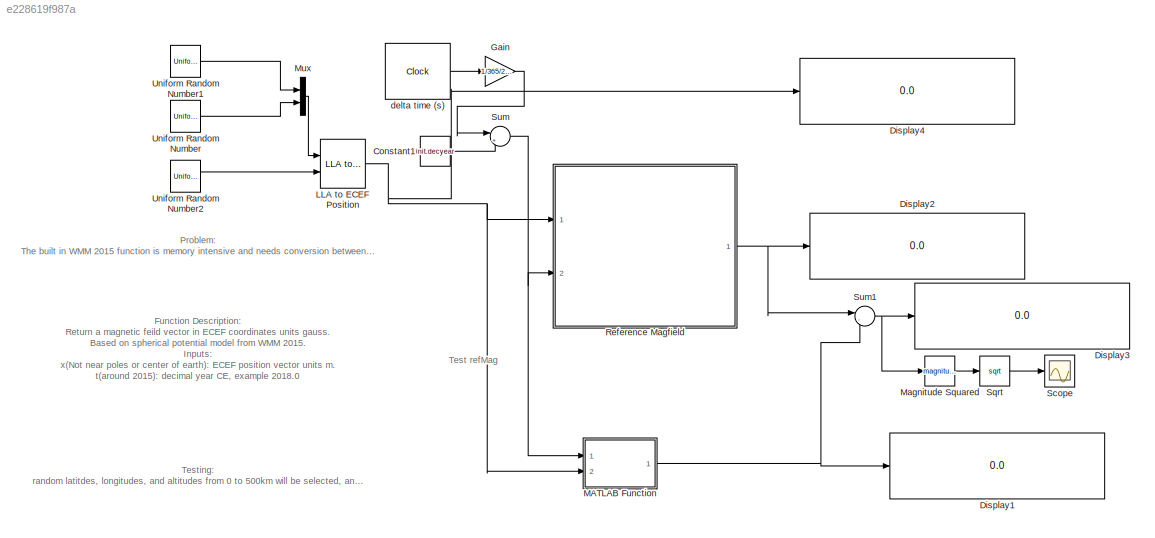
MODEL slx_e228619f987a
KIND model
CONFIG AbsTol = auto
CONFIG EnableMultiTasking = off
CONFIG FixedStep = 10000
CONFIG MaxStep = auto
CONFIG MinStep = auto
CONFIG RelTol = 1e-3
CONFIG SampleTimeConstraint = Unconstrained
CONFIG Solver = FixedStepAuto
CONFIG SolverName = FixedStepAuto
CONFIG StartTime = 0
CONFIG StopTime = 1000000000
BLOCK [Constant] Constant1
  Value = init.decyear
BLOCK [Display] Display1
  Decimation = 1
  Ports = [1]
BLOCK [Display] Display2
  Decimation = 1
  Ports = [1]
BLOCK [Display] Display3
  Decimation = 1
  Ports = [1]
BLOCK [Display] Display4
  Decimation = 1
  Ports = [1]
BLOCK [Gain] Gain
  Gain = 1/365/24/3600
  OutDataTypeStr = Inherit: Inherit via internal rule
  ParamDataTypeStr = Inherit: Inherit via internal rule
  SaturateOnIntegerOverflow = off
BLOCK [Reference] LLA to ECEF Position  REF=aerolibtransform2/LLA to ECEF Position
  Ports = [2, 1]
  SourceBlock = aerolibtransform2/LLA to ECEF Position
  SourceProductBaseCode = AE
  SourceProductName = Aerospace Blockset
  SourceType = LLA to ECEF
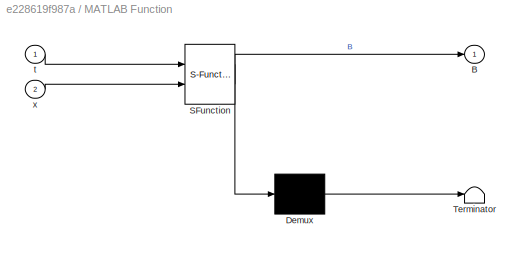
BLOCK [SubSystem] MATLAB Function
  ErrorFcn = Stateflow.Translate.translate
  PermitHierarchicalResolution = ExplicitOnly
  Ports = [2, 1]
  RequestExecContextInheritance = off
  SFBlockType = MATLAB Function
  TreatAsAtomicUnit = on
BLOCK [Demux] MATLAB Function/ Demux 
  Outputs = 1
  Ports = [1, 1]
BLOCK [S-Function] MATLAB Function/ SFunction 
  EnableBusSupport = on
  FunctionName = sf_sfun
  PortCounts = [2 2]
  Ports = [2, 2]
  SFcnIsStateOwnerBlock = off
  SFunctionDeploymentMode = off
  Tag = Stateflow S-Function refMagtest 2
BLOCK [Terminator] MATLAB Function/ Terminator 
BLOCK [Outport] MATLAB Function/B
  IconDisplay = Port number
BLOCK [Inport] MATLAB Function/t
  IconDisplay = Port number
BLOCK [Inport] MATLAB Function/x
  IconDisplay = Port number
  Port = 2
BLOCK [Math] Magnitude Squared
  Operator = magnitude^2
  Ports = [1, 1]
BLOCK [Mux] Mux
  DisplayOption = bar
  Inputs = 2
  Ports = [2, 1]
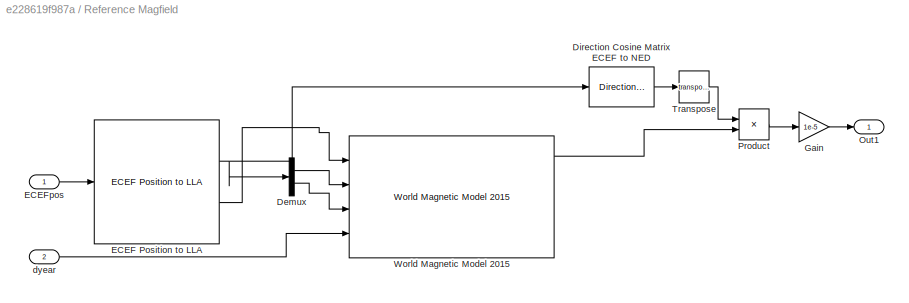
BLOCK [SubSystem] Reference Magfield 
  Ports = [2, 1]
  RequestExecContextInheritance = off
BLOCK [Demux] Reference Magfield /Demux
  DisplayOption = bar
  Outputs = 2
  Ports = [1, 2]
BLOCK [Reference] Reference Magfield /Direction Cosine Matrix ECEF to NED  REF=aerolibtransform2/Direction Cosine Matrix
ECEF to NED
  Ports = [1, 1]
  SourceBlock = aerolibtransform2/Direction Cosine Matrix\nECEF to NED
  SourceProductBaseCode = AE
  SourceProductName = Aerospace Blockset
  SourceType = DCM ECEF to NED
BLOCK [Reference] Reference Magfield /ECEF Position to LLA  REF=aerolibtransform2/ECEF Position to LLA
  Ports = [1, 2]
  SourceBlock = aerolibtransform2/ECEF Position to LLA
  SourceProductBaseCode = AE
  SourceProductName = Aerospace Blockset
  SourceType = ECEF to LLA
BLOCK [Inport] Reference Magfield /ECEFpos
  IconDisplay = Port number
BLOCK [Gain] Reference Magfield /Gain
  Gain = 1e-5
  OutDataTypeStr = Inherit: Inherit via internal rule
  ParamDataTypeStr = Inherit: Inherit via internal rule
  SaturateOnIntegerOverflow = off
BLOCK [Outport] Reference Magfield /Out1
  IconDisplay = Port number
BLOCK [Product] Reference Magfield /Product
  InputSameDT = off
  Multiplication = Matrix(*)
  OutDataTypeStr = Inherit: Inherit via internal rule
  Ports = [2, 1]
  RndMeth = Floor
  SaturateOnIntegerOverflow = off
BLOCK [Math] Reference Magfield /Transpose
  Operator = transpose
  Ports = [1, 1]
BLOCK [Reference] Reference Magfield /World Magnetic Model 2015  REF=aerolibgravity2/World Magnetic Model 2015
  Ports = [4, 5]
  SourceBlock = aerolibgravity2/World Magnetic Model 2015
  SourceProductBaseCode = AE
  SourceProductName = Aerospace Blockset
  SourceType = WorldMagneticModel2015
BLOCK [Inport] Reference Magfield /dyear
  IconDisplay = Port number
  Port = 2
BLOCK [Scope] Scope
  Floating = off
  NumInputPorts = 1
  Ports = [1]
  ScopeSpecificationString = Simulink.scopes.TimeScopeBlockCfg('CurrentConfiguration', extmgr.ConfigurationSet(extmgr.Configuration('Core','General UI',true),extmgr.Configuration('Core','Source UI',true),extmgr.Configuration('Sources','WiredSimulink',true),extmgr.Configuration('Visuals','Time Domain',true,'SerializedDisplays',{struct('MinYLimReal','-0.0000000009','MaxYLimReal','0.0000000081','YLabelReal','','MinYLimMag','0.00...<+1413ch>
BLOCK [Sqrt] Sqrt
BLOCK [Sum] Sum
  IconShape = round
  InputSameDT = off
  Inputs = |++
  OutDataTypeStr = Inherit: Inherit via internal rule
  Ports = [2, 1]
  SaturateOnIntegerOverflow = off
BLOCK [Sum] Sum1
  IconShape = round
  InputSameDT = off
  Inputs = |-+
  OutDataTypeStr = Inherit: Inherit via internal rule
  Ports = [2, 1]
  SaturateOnIntegerOverflow = off
BLOCK [UniformRandomNumber] Uniform Random Number
  Maximum = 180
  Minimum = -180
  Seed = 12123123
BLOCK [UniformRandomNumber] Uniform Random Number1
  Maximum = 90
  Minimum = -90
  Seed = 89251
BLOCK [UniformRandomNumber] Uniform Random Number2
  Maximum = 500000
  Minimum = 0
  Seed = 3804854
BLOCK [Clock] delta time (s)
  DisplayTime = on
ANNOTATION (root): Function Description: Return a magnetic feild vector in ECEF coordinates units gauss. Based on spherical potential model from WMM 2015. Inputs: x(Not near poles or center of earth): ECEF position vector units m. t(around 2015): decimal year CE, example 2018.0
ANNOTATION (root): Problem: The built in WMM 2015 function is memory intensive and needs conversion between LLA and ECEF. Modified functions with the same role but without LLA convesion need to be tested to ensure accuracy and memory
ANNOTATION (root): Testing: random latitdes, longitudes, and altitudes from 0 to 500km will be selected, and theresults from the test model will be compared to the builtin refernce WMM 2015 feild.
ANNOTATION (root): Test refMag
LINE Constant1:1 -> Sum:2
LINE Gain:1 -> Sum:1
NET LLA to ECEF Position:1 -> Display4:1, MATLAB Function:2, Reference Magfield :1
NET MATLAB Function:1 -> Display1:1, Sum1:2
LINE Magnitude Squared:1 -> Sqrt:1
LINE Mux:1 -> LLA to ECEF Position:1
LINE Reference Magfield /Demux:1 -> Reference Magfield /World Magnetic Model 2015:2
LINE Reference Magfield /Demux:2 -> Reference Magfield /World Magnetic Model 2015:3
LINE Reference Magfield /Direction Cosine Matrix ECEF to NED:1 -> Reference Magfield /Transpose:1
NET Reference Magfield /ECEF Position to LLA:1 -> Reference Magfield /Demux:1, Reference Magfield /Direction Cosine Matrix ECEF to NED:1
LINE Reference Magfield /ECEF Position to LLA:2 -> Reference Magfield /World Magnetic Model 2015:1
LINE Reference Magfield /ECEFpos:1 -> Reference Magfield /ECEF Position to LLA:1
LINE Reference Magfield /Gain:1 -> Reference Magfield /Out1:1
LINE Reference Magfield /Product:1 -> Reference Magfield /Gain:1
LINE Reference Magfield /Transpose:1 -> Reference Magfield /Product:1
LINE Reference Magfield /World Magnetic Model 2015:1 -> Reference Magfield /Product:2
LINE Reference Magfield /dyear:1 -> Reference Magfield /World Magnetic Model 2015:4
NET Reference Magfield :1 -> Display2:1, Sum1:1
LINE Sqrt:1 -> Scope:1
NET Sum1:1 -> Display3:1, Magnitude Squared:1
NET Sum:1 -> MATLAB Function:1, Reference Magfield :2
LINE Uniform Random Number1:1 -> Mux:1
LINE Uniform Random Number2:1 -> LLA to ECEF Position:2
LINE Uniform Random Number:1 -> Mux:2
LINE delta time (s):1 -> Gain:1
note: NET lines group one-source signal fan-out (src -> all destinations, sorted); 1:1 wires keep LINE
CHART MATLAB Function states=1 transitions=1
  STATE_LABEL 'eML_blk_kernel()'
  STATE_LABEL 'SCRIPT:\nfunction B = fcn(t,x)\n%sds\nB= refMag(t,x);\n\n'
